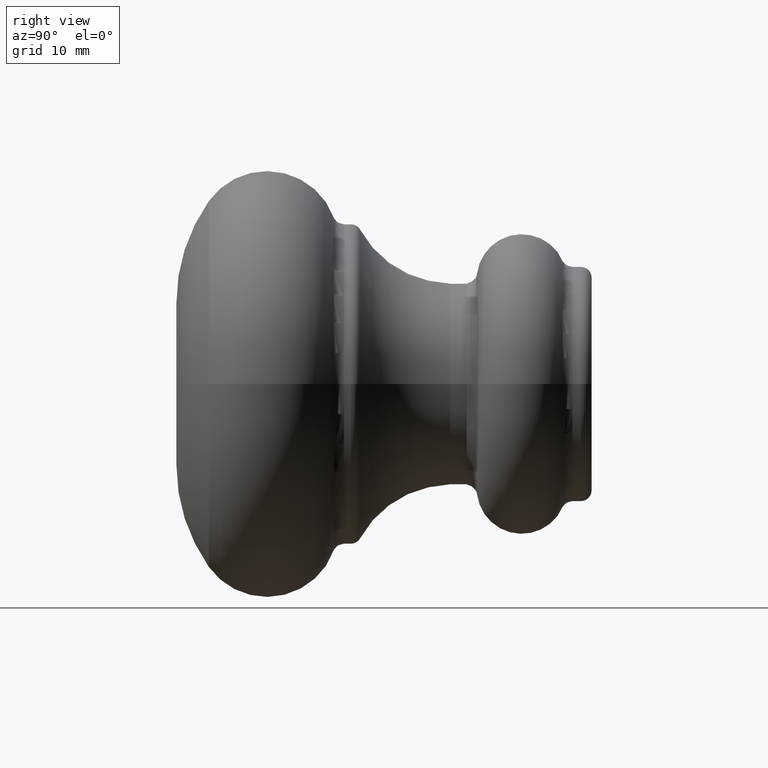
[diagram: clean part render]
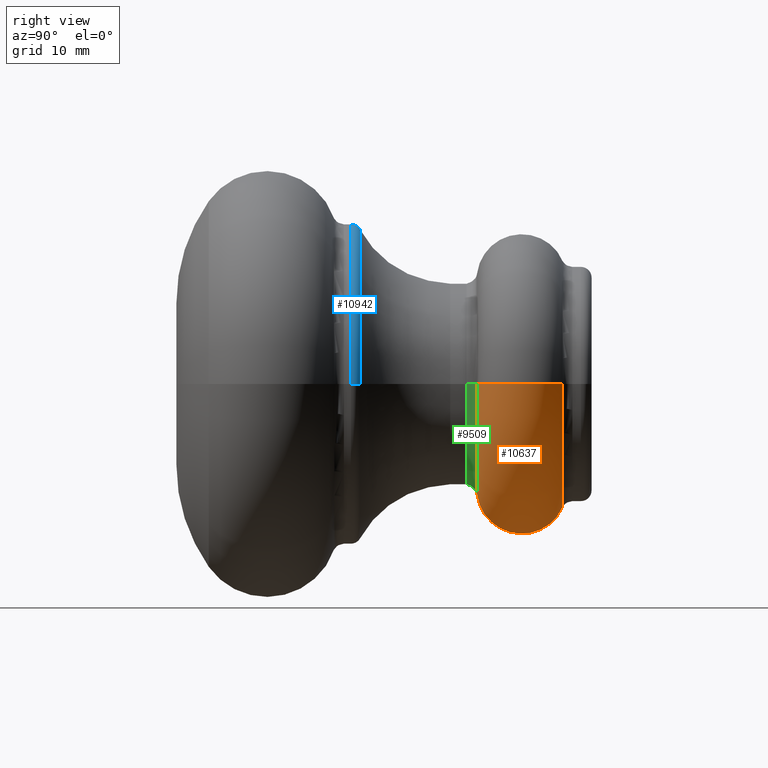
[diagram: same view with three faces highlighted in distinct colors, each labeled with its STEP entity id]
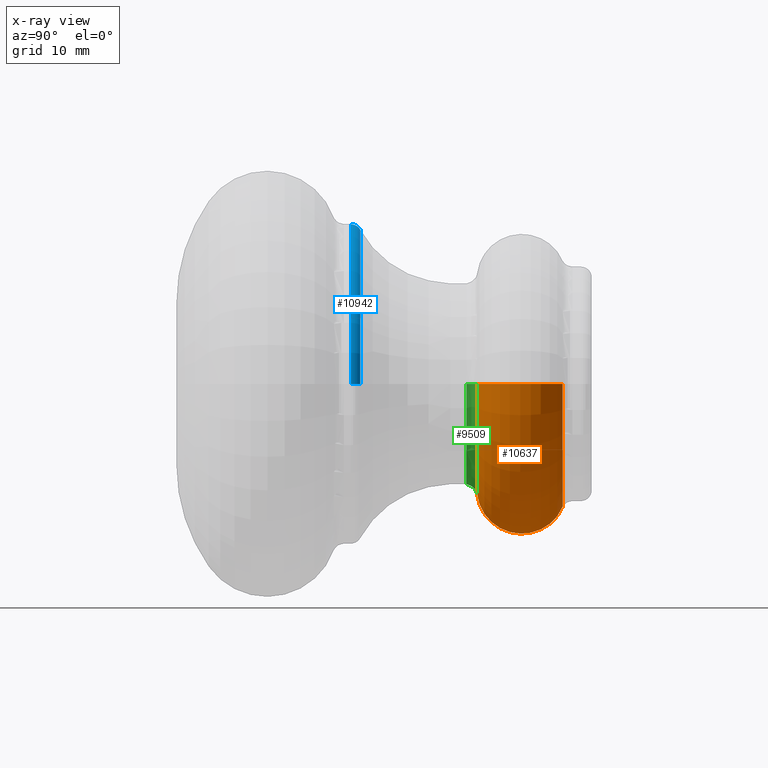
[diagram: x-ray of the same camera — body ghosted, the three highlighted faces saturated]
A machine part, right view with three faces highlighted in distinct colors.
The next image is the same camera in x-ray (body ghosted, the three faces saturated) — at least one of them is partly hidden behind the body in this view.
Their STEP definitions:

[orange] entity #10637 — the highlighted toroidal blend (fillet) surface has major radius 9.8418 mm and minor (blend) radius 4.2271 mm.
#412 = AXIS2_PLACEMENT_3D ( 'NONE', #9068, #4044, #10855 ) ;
#1248 = VERTEX_POINT ( 'NONE', #4549 ) ;
#1358 = TOROIDAL_SURFACE ( 'NONE', #1485, 9.841823006904037996, 4.227104383672032561 ) ;
#1485 = AXIS2_PLACEMENT_3D ( 'NONE', #2235, #9837, #4828 ) ;
#1639 = VERTEX_POINT ( 'NONE', #9937 ) ;
#1772 = EDGE_CURVE ( 'NONE', #10663, #10379, #8684, .T. ) ;
#1841 = ORIENTED_EDGE ( 'NONE', *, *, #3150, .F. ) ;
#2192 = DIRECTION ( 'NONE',  ( -3.140119997813719199E-18, -1.000000000000000000, 0.000000000000000000 ) ) ;
#2235 = CARTESIAN_POINT ( 'NONE',  ( 0.000000000000000000, 32.43465407091566988, 0.000000000000000000 ) ) ;
#2335 = AXIS2_PLACEMENT_3D ( 'NONE', #5536, #2192, #3880 ) ;
#2639 = DIRECTION ( 'NONE',  ( 3.140119997813719199E-18, 1.000000000000000000, -0.000000000000000000 ) ) ;
#3150 = EDGE_CURVE ( 'NONE', #1639, #10379, #9595, .T. ) ;
#3191 = CARTESIAN_POINT ( 'NONE',  ( -11.58711806103630870, 36.28463545327077355, 0.000000000000000000 ) ) ;
#3880 = DIRECTION ( 'NONE',  ( 1.000000000000000000, 0.000000000000000000, 0.000000000000000000 ) ) ;
#3927 = EDGE_CURVE ( 'NONE', #1639, #1248, #7712, .T. ) ;
#4044 = DIRECTION ( 'NONE',  ( -0.000000000000000000, 0.000000000000000000, -1.000000000000000000 ) ) ;
#4549 = CARTESIAN_POINT ( 'NONE',  ( -10.36325531862619442, 28.23983347704601954, 0.000000000000000000 ) ) ;
#4828 = DIRECTION ( 'NONE',  ( -1.000000000000000000, 3.140119997813719199E-18, 0.000000000000000000 ) ) ;
#5143 = ORIENTED_EDGE ( 'NONE', *, *, #3927, .T. ) ;
#5145 = DIRECTION ( 'NONE',  ( -1.000000000000000000, 0.000000000000000000, 0.000000000000000000 ) ) ;
#5536 = CARTESIAN_POINT ( 'NONE',  ( 1.208940352994375827E-17, 36.28463545327077355, 0.000000000000000000 ) ) ;
#5858 = ORIENTED_EDGE ( 'NONE', *, *, #8501, .T. ) ;
#5989 = CARTESIAN_POINT ( 'NONE',  ( -1.317224003405091175E-17, 28.23983347704601954, 0.000000000000000000 ) ) ;
#6108 = FACE_OUTER_BOUND ( 'NONE', #6532, .T. ) ;
#6214 = AXIS2_PLACEMENT_3D ( 'NONE', #9976, #7431, #7279 ) ;
#6273 = ORIENTED_EDGE ( 'NONE', *, *, #1772, .T. ) ;
#6532 = EDGE_LOOP ( 'NONE', ( #1841, #5143, #5858, #6273 ) ) ;
#6609 = CARTESIAN_POINT ( 'NONE',  ( 11.58711806103630870, 36.28463545327077355, 1.419012704479060184E-15 ) ) ;
#7279 = DIRECTION ( 'NONE',  ( 1.000000000000000000, 0.000000000000000000, 1.224646799147353207E-16 ) ) ;
#7431 = DIRECTION ( 'NONE',  ( -1.224646799147353207E-16, 3.845537904261165162E-34, 1.000000000000000000 ) ) ;
#7712 = CIRCLE ( 'NONE', #9795, 10.36325531862619442 ) ;
#8501 = EDGE_CURVE ( 'NONE', #1248, #10663, #8997, .T. ) ;
#8684 = CIRCLE ( 'NONE', #2335, 11.58711806103635311 ) ;
#8997 = CIRCLE ( 'NONE', #412, 4.227104383672032561 ) ;
#9068 = CARTESIAN_POINT ( 'NONE',  ( -9.841823006904037996, 32.43465407091566988, 0.000000000000000000 ) ) ;
#9595 = CIRCLE ( 'NONE', #6214, 4.227104383672032561 ) ;
#9795 = AXIS2_PLACEMENT_3D ( 'NONE', #5989, #2639, #5145 ) ;
#9837 = DIRECTION ( 'NONE',  ( 3.140119997813719199E-18, 1.000000000000000000, -0.000000000000000000 ) ) ;
#9937 = CARTESIAN_POINT ( 'NONE',  ( 10.36325531862619442, 28.23983347704601954, 1.344072724974649826E-15 ) ) ;
#9976 = CARTESIAN_POINT ( 'NONE',  ( 9.841823006904037996, 32.43465407091566988, 1.205275704317980954E-15 ) ) ;
#10379 = VERTEX_POINT ( 'NONE', #6609 ) ;
#10637 = ADVANCED_FACE ( 'NONE', ( #6108 ), #1358, .T. ) ;
#10663 = VERTEX_POINT ( 'NONE', #3191 ) ;
#10855 = DIRECTION ( 'NONE',  ( -1.000000000000000000, 0.000000000000000000, 0.000000000000000000 ) ) ;

[blue] entity #10942 — the highlighted toroidal blend (fillet) surface has major radius 14 mm and minor (blend) radius 1 mm.
#123 = CARTESIAN_POINT ( 'NONE',  ( 1.107847159264241269E-17, 16.38929124658149306, 0.000000000000000000 ) ) ;
#553 = CIRCLE ( 'NONE', #1476, 14.48262384959897098 ) ;
#827 = DIRECTION ( 'NONE',  ( 3.140119997813719199E-18, 1.000000000000000000, -0.000000000000000000 ) ) ;
#880 = EDGE_LOOP ( 'NONE', ( #5305, #2011, #7098, #6545 ) ) ;
#901 = CARTESIAN_POINT ( 'NONE',  ( -2.655719382564844235E-17, 17.26511898066980777, 0.000000000000000000 ) ) ;
#1476 = AXIS2_PLACEMENT_3D ( 'NONE', #901, #827, #1683 ) ;
#1683 = DIRECTION ( 'NONE',  ( -1.000000000000000000, 0.000000000000000000, 0.000000000000000000 ) ) ;
#2011 = ORIENTED_EDGE ( 'NONE', *, *, #9411, .T. ) ;
#2122 = DIRECTION ( 'NONE',  ( -3.140119997813719199E-18, -1.000000000000000000, 0.000000000000000000 ) ) ;
#2669 = EDGE_CURVE ( 'NONE', #7582, #8405, #10144, .T. ) ;
#2703 = DIRECTION ( 'NONE',  ( 1.000000000000000000, -3.140119997813719199E-18, 0.000000000000000000 ) ) ;
#3211 = TOROIDAL_SURFACE ( 'NONE', #8364, 14.00000000000000178, 1.000000000000000000 ) ;
#3267 = CARTESIAN_POINT ( 'NONE',  ( -14.00000000000000178, 16.38929124658149306, 1.714505518806294835E-15 ) ) ;
#3281 = VERTEX_POINT ( 'NONE', #5022 ) ;
#3346 = VERTEX_POINT ( 'NONE', #7650 ) ;
#3472 = FACE_OUTER_BOUND ( 'NONE', #880, .T. ) ;
#3589 = AXIS2_PLACEMENT_3D ( 'NONE', #3267, #6746, #10402 ) ;
#3787 = EDGE_CURVE ( 'NONE', #3281, #3346, #553, .T. ) ;
#4182 = CARTESIAN_POINT ( 'NONE',  ( 15.00000000000000355, 16.38929124658149306, 1.836970198721029983E-15 ) ) ;
#4524 = CARTESIAN_POINT ( 'NONE',  ( 5.146434119338387498E-17, 16.38929124658149306, 0.000000000000000000 ) ) ;
#4953 = AXIS2_PLACEMENT_3D ( 'NONE', #4524, #2122, #10453 ) ;
#5022 = CARTESIAN_POINT ( 'NONE',  ( -14.48262384959896920, 17.26511898066980777, 0.000000000000000000 ) ) ;
#5115 = DIRECTION ( 'NONE',  ( -3.140119997813719199E-18, -1.000000000000000000, 0.000000000000000000 ) ) ;
#5305 = ORIENTED_EDGE ( 'NONE', *, *, #3787, .F. ) ;
#6427 = CIRCLE ( 'NONE', #3589, 1.000000000000000888 ) ;
#6545 = ORIENTED_EDGE ( 'NONE', *, *, #10716, .F. ) ;
#6746 = DIRECTION ( 'NONE',  ( 1.224646799147353207E-16, -3.845537904261165162E-34, 1.000000000000000000 ) ) ;
#6804 = CIRCLE ( 'NONE', #9287, 1.000000000000000888 ) ;
#7098 = ORIENTED_EDGE ( 'NONE', *, *, #2669, .F. ) ;
#7529 = DIRECTION ( 'NONE',  ( 0.000000000000000000, -0.000000000000000000, -1.000000000000000000 ) ) ;
#7582 = VERTEX_POINT ( 'NONE', #4182 ) ;
#7650 = CARTESIAN_POINT ( 'NONE',  ( 14.48262384959896920, 17.26511898066980777, 1.773609894066649419E-15 ) ) ;
#8009 = CARTESIAN_POINT ( 'NONE',  ( -15.00000000000000355, 16.38929124658149306, 0.000000000000000000 ) ) ;
#8355 = CARTESIAN_POINT ( 'NONE',  ( 14.00000000000000178, 16.38929124658149306, 0.000000000000000000 ) ) ;
#8364 = AXIS2_PLACEMENT_3D ( 'NONE', #123, #5115, #2703 ) ;
#8405 = VERTEX_POINT ( 'NONE', #8009 ) ;
#9287 = AXIS2_PLACEMENT_3D ( 'NONE', #8355, #7529, #11001 ) ;
#9411 = EDGE_CURVE ( 'NONE', #3281, #8405, #6427, .T. ) ;
#10144 = CIRCLE ( 'NONE', #4953, 15.00000000000000355 ) ;
#10402 = DIRECTION ( 'NONE',  ( 1.000000000000000000, 0.000000000000000000, -1.224646799147351482E-16 ) ) ;
#10453 = DIRECTION ( 'NONE',  ( 1.000000000000000000, 0.000000000000000000, 0.000000000000000000 ) ) ;
#10716 = EDGE_CURVE ( 'NONE', #3346, #7582, #6804, .T. ) ;
#10942 = ADVANCED_FACE ( 'NONE', ( #3472 ), #3211, .T. ) ;
#11001 = DIRECTION ( 'NONE',  ( -1.000000000000000000, 0.000000000000000000, 0.000000000000000000 ) ) ;

[green] entity #9509 — the highlighted toroidal blend (fillet) surface has major radius 10.4866 mm and minor (blend) radius 1 mm.
#36 = DIRECTION ( 'NONE',  ( -1.224646799147353207E-16, 3.845537904261165162E-34, 1.000000000000000000 ) ) ;
#129 = AXIS2_PLACEMENT_3D ( 'NONE', #7602, #9281, #3407 ) ;
#307 = DIRECTION ( 'NONE',  ( 3.140119997813719199E-18, 1.000000000000000000, -0.000000000000000000 ) ) ;
#373 = EDGE_LOOP ( 'NONE', ( #6642, #1849, #1214, #10356 ) ) ;
#1017 = TOROIDAL_SURFACE ( 'NONE', #9100, 10.48660981011596505, 1.000000000000000000 ) ;
#1214 = ORIENTED_EDGE ( 'NONE', *, *, #7156, .F. ) ;
#1248 = VERTEX_POINT ( 'NONE', #4549 ) ;
#1360 = VERTEX_POINT ( 'NONE', #8270 ) ;
#1639 = VERTEX_POINT ( 'NONE', #9937 ) ;
#1849 = ORIENTED_EDGE ( 'NONE', *, *, #5343, .T. ) ;
#2251 = CARTESIAN_POINT ( 'NONE',  ( -9.486609810115965047, 27.24747080673393285, 0.000000000000000000 ) ) ;
#2639 = DIRECTION ( 'NONE',  ( 3.140119997813719199E-18, 1.000000000000000000, -0.000000000000000000 ) ) ;
#3407 = DIRECTION ( 'NONE',  ( -1.000000000000000000, 0.000000000000000000, 0.000000000000000000 ) ) ;
#3767 = CARTESIAN_POINT ( 'NONE',  ( 3.463597503494449616E-17, 27.24747080673393285, 0.000000000000000000 ) ) ;
#3927 = EDGE_CURVE ( 'NONE', #1639, #1248, #7712, .T. ) ;
#4090 = AXIS2_PLACEMENT_3D ( 'NONE', #7475, #36, #5028 ) ;
#4479 = CIRCLE ( 'NONE', #129, 9.486609810115965047 ) ;
#4549 = CARTESIAN_POINT ( 'NONE',  ( -10.36325531862619442, 28.23983347704601954, 0.000000000000000000 ) ) ;
#4755 = CIRCLE ( 'NONE', #4090, 1.000000000000000888 ) ;
#4952 = DIRECTION ( 'NONE',  ( -0.000000000000000000, 0.000000000000000000, -1.000000000000000000 ) ) ;
#5028 = DIRECTION ( 'NONE',  ( 1.000000000000000000, 0.000000000000000000, 1.224646799147351482E-16 ) ) ;
#5145 = DIRECTION ( 'NONE',  ( -1.000000000000000000, 0.000000000000000000, 0.000000000000000000 ) ) ;
#5343 = EDGE_CURVE ( 'NONE', #1639, #1360, #4755, .T. ) ;
#5785 = DIRECTION ( 'NONE',  ( -1.000000000000000000, 0.000000000000000000, 0.000000000000000000 ) ) ;
#5989 = CARTESIAN_POINT ( 'NONE',  ( -1.317224003405091175E-17, 28.23983347704601954, 0.000000000000000000 ) ) ;
#6030 = FACE_OUTER_BOUND ( 'NONE', #373, .T. ) ;
#6642 = ORIENTED_EDGE ( 'NONE', *, *, #3927, .F. ) ;
#7156 = EDGE_CURVE ( 'NONE', #10298, #1360, #4479, .T. ) ;
#7475 = CARTESIAN_POINT ( 'NONE',  ( 10.48660981011596505, 27.24747080673393285, 1.284239313786575007E-15 ) ) ;
#7602 = CARTESIAN_POINT ( 'NONE',  ( 8.556032797007073217E-17, 27.24747080673393285, 0.000000000000000000 ) ) ;
#7712 = CIRCLE ( 'NONE', #9795, 10.36325531862619442 ) ;
#8182 = CIRCLE ( 'NONE', #10092, 1.000000000000000888 ) ;
#8270 = CARTESIAN_POINT ( 'NONE',  ( 9.486609810115965047, 27.24747080673393285, 1.161774633871839662E-15 ) ) ;
#9000 = EDGE_CURVE ( 'NONE', #1248, #10298, #8182, .T. ) ;
#9100 = AXIS2_PLACEMENT_3D ( 'NONE', #3767, #307, #9722 ) ;
#9281 = DIRECTION ( 'NONE',  ( -3.140119997813719199E-18, -1.000000000000000000, 0.000000000000000000 ) ) ;
#9509 = ADVANCED_FACE ( 'NONE', ( #6030 ), #1017, .F. ) ;
#9722 = DIRECTION ( 'NONE',  ( -1.000000000000000000, 3.140119997813718814E-18, 0.000000000000000000 ) ) ;
#9795 = AXIS2_PLACEMENT_3D ( 'NONE', #5989, #2639, #5145 ) ;
#9937 = CARTESIAN_POINT ( 'NONE',  ( 10.36325531862619442, 28.23983347704601954, 1.344072724974649826E-15 ) ) ;
#10092 = AXIS2_PLACEMENT_3D ( 'NONE', #10943, #4952, #5785 ) ;
#10298 = VERTEX_POINT ( 'NONE', #2251 ) ;
#10356 = ORIENTED_EDGE ( 'NONE', *, *, #9000, .F. ) ;
#10943 = CARTESIAN_POINT ( 'NONE',  ( -10.48660981011596505, 27.24747080673393285, 0.000000000000000000 ) ) ;